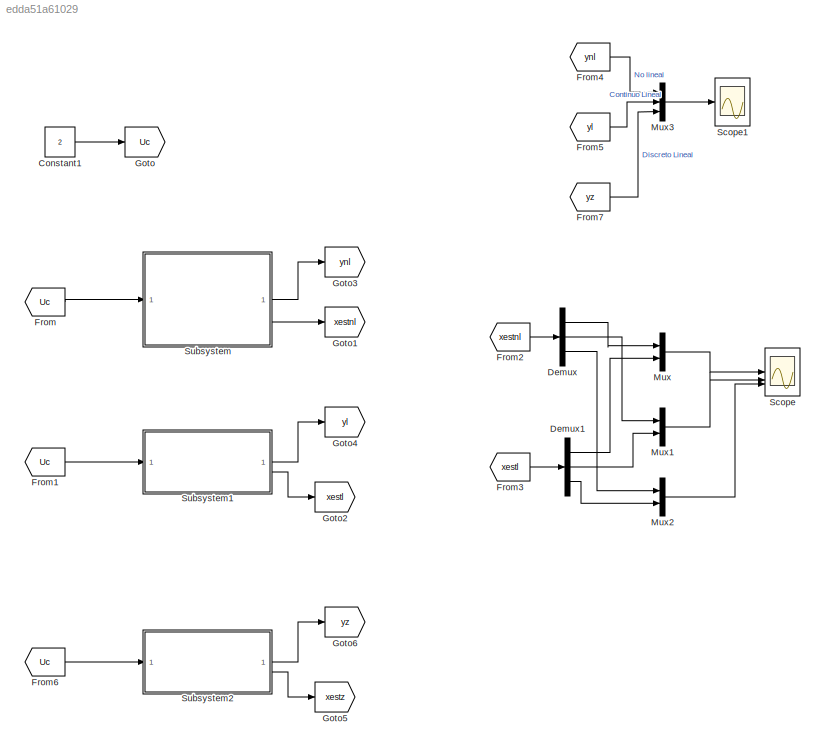
MODEL slx_edda51a61029
KIND model
CONFIG AbsTol = auto
CONFIG EnableMultiTasking = off
CONFIG FixedStep = auto
CONFIG MaxStep = 1e-3
CONFIG MinStep = auto
CONFIG RelTol = 1e-3
CONFIG SampleTimeConstraint = Unconstrained
CONFIG SolverName = ode45
CONFIG StartTime = 0.0
CONFIG StopTime = 20
BLOCK [Constant] Constant1
  Value = 2
BLOCK [Demux] Demux
  Outputs = 3
BLOCK [Demux] Demux1
  Outputs = 3
BLOCK [From] From
  GotoTag = Uc
BLOCK [From] From1
  GotoTag = Uc
BLOCK [From] From2
  GotoTag = xestnl
BLOCK [From] From3
  GotoTag = xestl
BLOCK [From] From4
  GotoTag = ynl
BLOCK [From] From5
  GotoTag = yl
BLOCK [From] From6
  GotoTag = Uc
BLOCK [From] From7
  GotoTag = yz
BLOCK [Goto] Goto
  GotoTag = Uc
BLOCK [Goto] Goto1
  GotoTag = xestnl
BLOCK [Goto] Goto2
  GotoTag = xestl
BLOCK [Goto] Goto3
  GotoTag = ynl
BLOCK [Goto] Goto4
  GotoTag = yl
BLOCK [Goto] Goto5
  GotoTag = xestz
BLOCK [Goto] Goto6
  GotoTag = yz
BLOCK [Mux] Mux
  DisplayOption = bar
  Inputs = 2
BLOCK [Mux] Mux1
  DisplayOption = bar
  Inputs = 2
BLOCK [Mux] Mux2
  DisplayOption = bar
  Inputs = 2
BLOCK [Mux] Mux3
  DisplayOption = bar
  Inputs = 3
BLOCK [Scope] Scope
  Floating = off
  NumInputPorts = 3
  ScopeSpecificationString = Simulink.scopes.TimeScopeBlockCfg('CurrentConfiguration', extmgr.ConfigurationSet(extmgr.Configuration('Core','General UI',true,'FigureColor',[1 1 1]),extmgr.Configuration('Core','Source UI',true),extmgr.Configuration('Sources','WiredSimulink',true),extmgr.Configuration('Visuals','Time Domain',true,'SerializedDisplays',{struct('MinYLimReal','-0.05','MaxYLimReal','0.45','YLabelReal','','MinYLimMag'...<+4006ch>
BLOCK [Scope] Scope1
  Floating = off
  NumInputPorts = 1
  ScopeSpecificationString = Simulink.scopes.TimeScopeBlockCfg('CurrentConfiguration', extmgr.ConfigurationSet(extmgr.Configuration('Core','General UI',true,'FigureColor',[1 1 1]),extmgr.Configuration('Core','Source UI',true),extmgr.Configuration('Sources','WiredSimulink',true,'DataLoggingVariableName','ScopeData1'),extmgr.Configuration('Visuals','Time Domain',true,'SerializedDisplays',{struct('MinYLimReal','-0.07829','MaxYLi...<+2506ch>
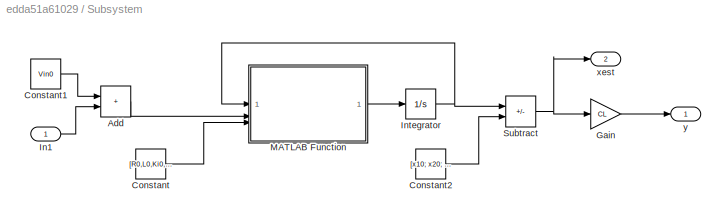
BLOCK [SubSystem] Subsystem
BLOCK [Sum] Subsystem/Add
  IconShape = rectangular
BLOCK [Constant] Subsystem/Constant
  Value = [R0,L0,Ki0,Kv0,Jm0, Jl0, Bm0, Bl0,n0,g0,d0,m0]
BLOCK [Constant] Subsystem/Constant1
  Value = Vin0
BLOCK [Constant] Subsystem/Constant2
  Value = [x10; x20; x30]
BLOCK [Gain] Subsystem/Gain
  Gain = CL
  Multiplication = Matrix(K*u)
BLOCK [Inport] Subsystem/In1
BLOCK [Integrator] Subsystem/Integrator
  InitialCondition = [x10; x20; x30]
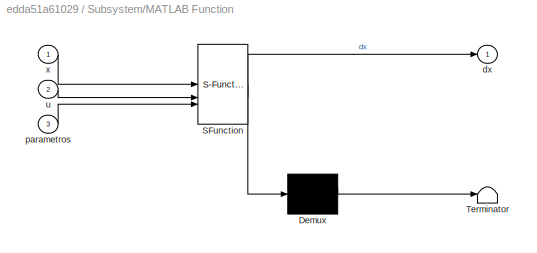
BLOCK [SubSystem] Subsystem/MATLAB Function
  ErrorFcn = Stateflow.Translate.translate
  PermitHierarchicalResolution = ExplicitOnly
  SFBlockType = MATLAB Function
  TreatAsAtomicUnit = on
BLOCK [Demux] Subsystem/MATLAB Function/ Demux 
  Outputs = 1
BLOCK [S-Function] Subsystem/MATLAB Function/ SFunction 
  EnableBusSupport = on
  FunctionName = sf_sfun
  PortCounts = [3 2]
  SFcnIsStateOwnerBlock = off
  SFunctionDeploymentMode = off
  Tag = Stateflow S-Function 2
BLOCK [Terminator] Subsystem/MATLAB Function/ Terminator 
BLOCK [Outport] Subsystem/MATLAB Function/dx
BLOCK [Inport] Subsystem/MATLAB Function/parametros
  Port = 3
BLOCK [Inport] Subsystem/MATLAB Function/u
  Port = 2
BLOCK [Inport] Subsystem/MATLAB Function/x
BLOCK [Sum] Subsystem/Subtract
  IconShape = rectangular
  Inputs = +-
BLOCK [Outport] Subsystem/xest
  Port = 2
BLOCK [Outport] Subsystem/y
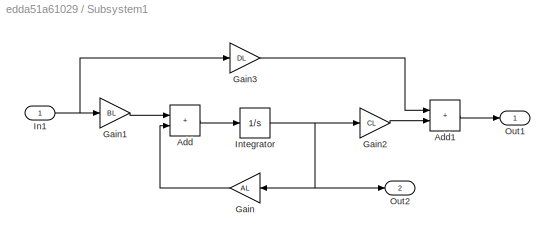
BLOCK [SubSystem] Subsystem1
BLOCK [Sum] Subsystem1/Add
  IconShape = rectangular
BLOCK [Sum] Subsystem1/Add1
  IconShape = rectangular
BLOCK [Gain] Subsystem1/Gain
  Gain = AL
  Multiplication = Matrix(K*u)
  NameLocation = top
BLOCK [Gain] Subsystem1/Gain1
  Gain = BL
  Multiplication = Matrix(K*u)
BLOCK [Gain] Subsystem1/Gain2
  Gain = CL
  Multiplication = Matrix(K*u)
BLOCK [Gain] Subsystem1/Gain3
  Gain = DL
  Multiplication = Matrix(K*u)
BLOCK [Inport] Subsystem1/In1
BLOCK [Integrator] Subsystem1/Integrator
BLOCK [Outport] Subsystem1/Out1
BLOCK [Outport] Subsystem1/Out2
  Port = 2
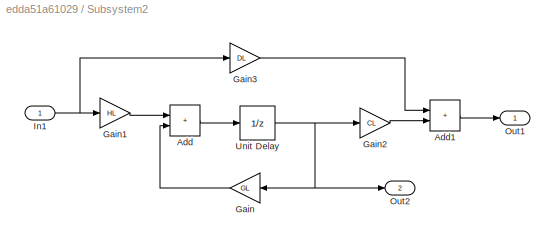
BLOCK [SubSystem] Subsystem2
BLOCK [Sum] Subsystem2/Add
  IconShape = rectangular
BLOCK [Sum] Subsystem2/Add1
  IconShape = rectangular
BLOCK [Gain] Subsystem2/Gain
  Gain = GL
  Multiplication = Matrix(K*u)
  NameLocation = top
BLOCK [Gain] Subsystem2/Gain1
  Gain = HL
  Multiplication = Matrix(K*u)
BLOCK [Gain] Subsystem2/Gain2
  Gain = CL
  Multiplication = Matrix(K*u)
BLOCK [Gain] Subsystem2/Gain3
  Gain = DL
  Multiplication = Matrix(K*u)
BLOCK [Inport] Subsystem2/In1
BLOCK [Outport] Subsystem2/Out1
BLOCK [Outport] Subsystem2/Out2
  Port = 2
BLOCK [UnitDelay] Subsystem2/Unit Delay
  HasFrameUpgradeWarning = on
  SampleTime = Tm
LINE Constant1:1 -> Goto:1
LINE Demux1:1 -> Mux:2
LINE Demux1:2 -> Mux1:2
LINE Demux1:3 -> Mux2:2
LINE Demux:1 -> Mux:1
LINE Demux:2 -> Mux1:1
LINE Demux:3 -> Mux2:1
LINE From1:1 -> Subsystem1:1
LINE From2:1 -> Demux:1
LINE From3:1 -> Demux1:1
LINE From4:1 -> Mux3:1
LINE From5:1 -> Mux3:2
LINE From6:1 -> Subsystem2:1
LINE From7:1 -> Mux3:3
LINE From:1 -> Subsystem:1
LINE Mux1:1 -> Scope:2
LINE Mux2:1 -> Scope:3
LINE Mux3:1 -> Scope1:1
LINE Mux:1 -> Scope:1
LINE Subsystem/Add:1 -> Subsystem/MATLAB Function:2
LINE Subsystem/Constant1:1 -> Subsystem/Add:1
LINE Subsystem/Constant2:1 -> Subsystem/Subtract:2
LINE Subsystem/Constant:1 -> Subsystem/MATLAB Function:3
LINE Subsystem/Gain:1 -> Subsystem/y:1
LINE Subsystem/In1:1 -> Subsystem/Add:2
NET Subsystem/Integrator:1 -> Subsystem/MATLAB Function:1, Subsystem/Subtract:1
LINE Subsystem/MATLAB Function:1 -> Subsystem/Integrator:1
NET Subsystem/Subtract:1 -> Subsystem/Gain:1, Subsystem/xest:1
LINE Subsystem1/Add1:1 -> Subsystem1/Out1:1
LINE Subsystem1/Add:1 -> Subsystem1/Integrator:1
LINE Subsystem1/Gain1:1 -> Subsystem1/Add:1
LINE Subsystem1/Gain2:1 -> Subsystem1/Add1:2
LINE Subsystem1/Gain3:1 -> Subsystem1/Add1:1
LINE Subsystem1/Gain:1 -> Subsystem1/Add:2
NET Subsystem1/In1:1 -> Subsystem1/Gain1:1, Subsystem1/Gain3:1
NET Subsystem1/Integrator:1 -> Subsystem1/Gain2:1, Subsystem1/Gain:1, Subsystem1/Out2:1
LINE Subsystem1:1 -> Goto4:1
LINE Subsystem1:2 -> Goto2:1
LINE Subsystem2/Add1:1 -> Subsystem2/Out1:1
LINE Subsystem2/Add:1 -> Subsystem2/Unit Delay:1
LINE Subsystem2/Gain1:1 -> Subsystem2/Add:1
LINE Subsystem2/Gain2:1 -> Subsystem2/Add1:2
LINE Subsystem2/Gain3:1 -> Subsystem2/Add1:1
LINE Subsystem2/Gain:1 -> Subsystem2/Add:2
NET Subsystem2/In1:1 -> Subsystem2/Gain1:1, Subsystem2/Gain3:1
NET Subsystem2/Unit Delay:1 -> Subsystem2/Gain2:1, Subsystem2/Gain:1, Subsystem2/Out2:1
LINE Subsystem2:1 -> Goto6:1
LINE Subsystem2:2 -> Goto5:1
LINE Subsystem:1 -> Goto3:1
LINE Subsystem:2 -> Goto1:1
note: NET lines group one-source signal fan-out (src -> all destinations, sorted); 1:1 wires keep LINE
CHART Subsystem/MATLAB Function states=1 transitions=1
  STATE_LABEL 'eML_blk_kernel()'
  STATE_LABEL 'SCRIPT:\nfunction dx = fcn(x,u,parametros)\n\nx1 = x(1);\nx2 = x(2);\nx3 = x(3);\nVin = u;\n\nR = parametros(1);\nL = parametros(2);\nKi = parametros(3);\nKv = parametros(4);\nJm = parametros(5);\nJl = parametros(6);\nBm = parametros(7);\nBl = parametros(8);\nn = parametros(9);\ng = parametros(10);\nd = parametros(11);\nm = parametros(12);\n\nJt = Jm + Jl/n;\nf1 = (1/L)*(Vin - R*x1 - Kv*x2);\nf2 = (1/Jt)*(Ki*x1 - (Bm + ...<+57ch>'
CHART  states=0 transitions=0
